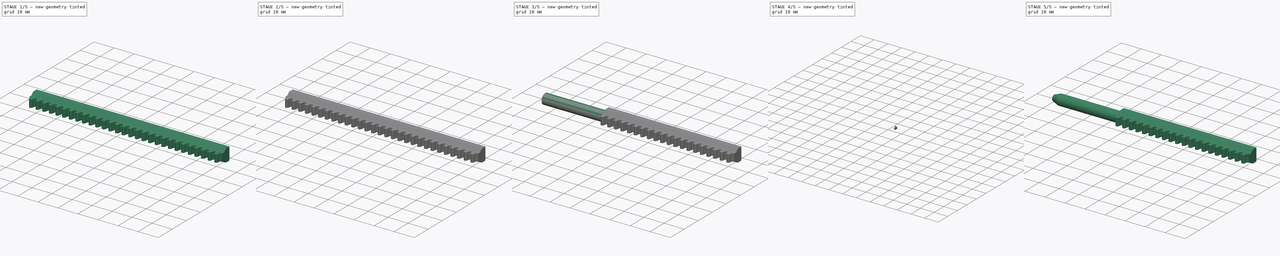
[diagram: build sequence overview — one tinted view per stage of 5, left to right]
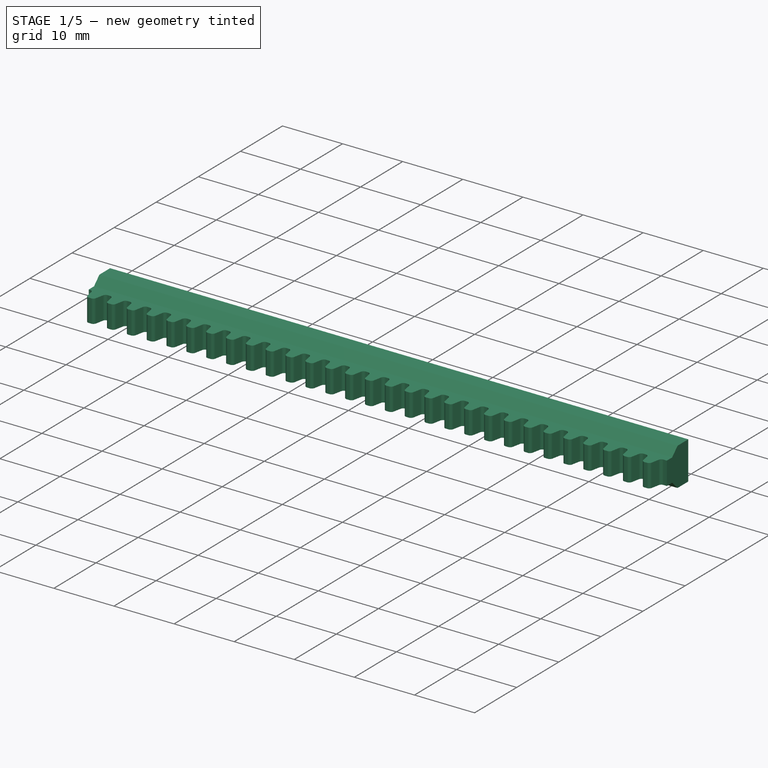
[diagram: stage 1 of 5 — iso view after this stage's code; geometry added in this stage tinted green]
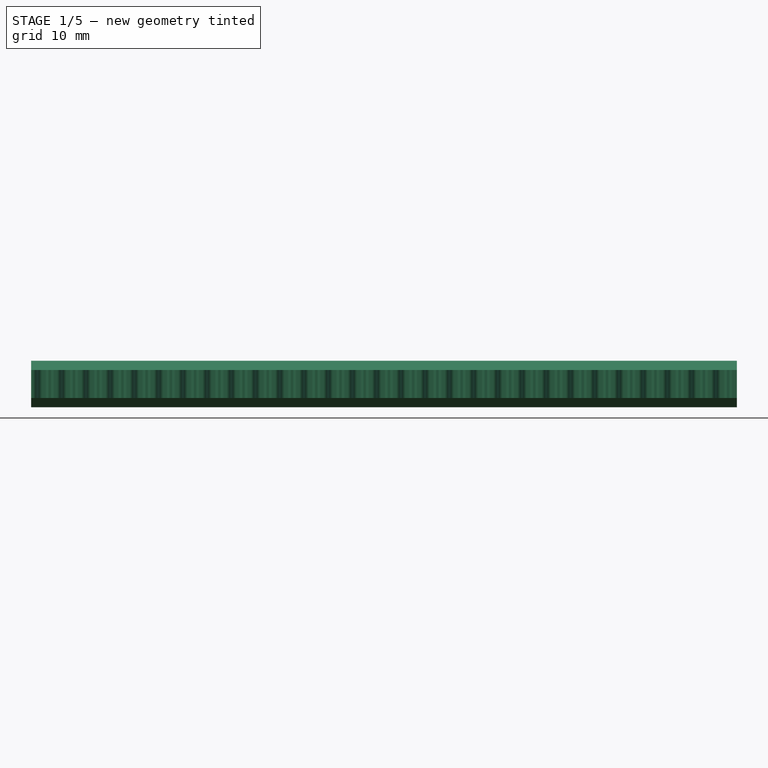
[diagram: stage 1 of 5 — front view after this stage's code; geometry added in this stage tinted green]
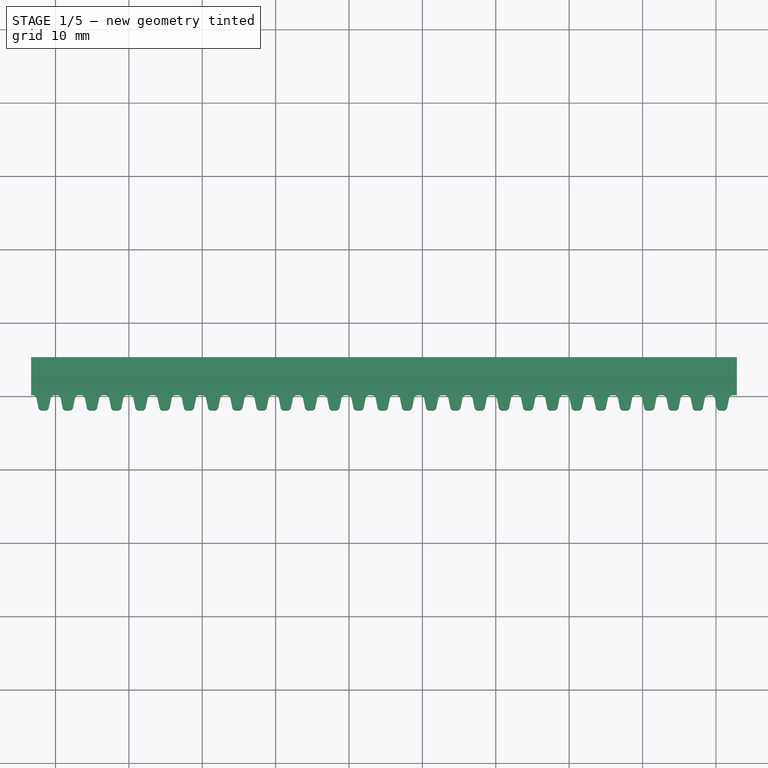
[diagram: stage 1 of 5 — top view after this stage's code; geometry added in this stage tinted green]
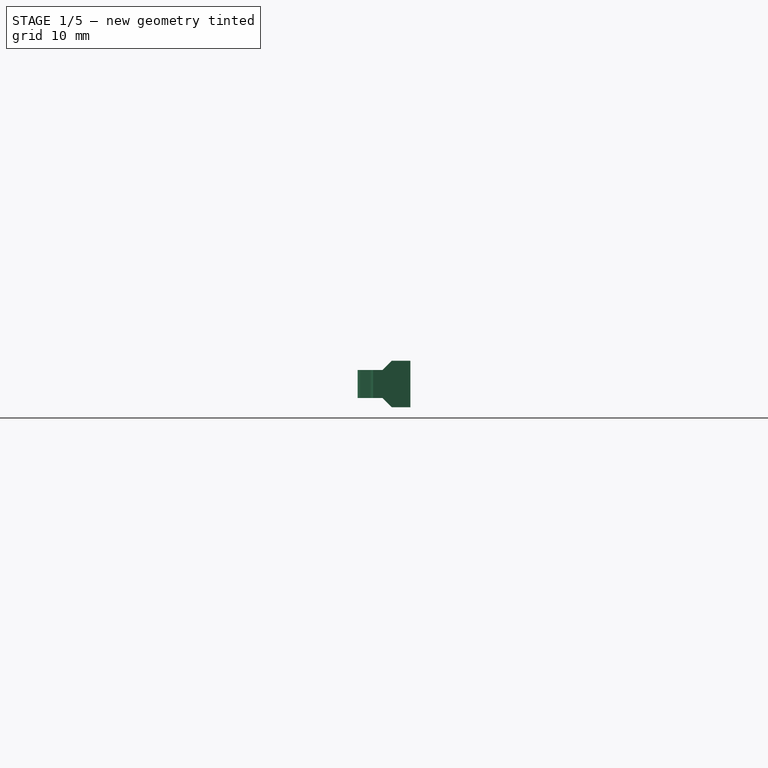
[diagram: stage 1 of 5 — right view after this stage's code; geometry added in this stage tinted green]
FCSTD DOCUMENT  (FreeCAD 0.19R24267 +99 (Git))
Label: Hopper Rod1
License: All rights reserved
LicenseURL: http://en.wikipedia.org/wiki/All_rights_reserved
objects: PartDesign::FeatureBase×6, PartDesign::Body×6, Sketcher::SketchObject×5, Part::FeaturePython×4, Part::Extrusion×4, PartDesign::Plane×3, Part::Face×2, App::DocumentObjectGroup×2, Part::MultiFuse×2, Part::Feature×1, Part::Cut×1
note: 34 computed .brp shape members not serialized (recipe doc carries the construction recipe); baked Part::Feature solids carry a one-line shape summary decoded from their .brp

FEATURE [Part::Feature] Part__Feature  label="Rack, Servo to Linear_100mm_MINI"
  shape: bbox 100 x 16.34 x 10.16 mm, 251 faces (baked)
FEATURE [PartDesign::FeatureBase] BaseFeature
  BaseFeature = -> Part__Feature
FEATURE [PartDesign::Plane] DatumPlane
  Length = 60
  MapMode = 5
  Placement = pos=(-73.33,0,0) rot=(0.57735,0.57735,0.57735;2.0944rad)
  ResizeMode = 0
  Support = -> [BaseFeature]
  Width = 60
FEATURE [Sketcher::SketchObject] Sketch
  FullyConstrained = false
  MapMode = 5
  Placement = pos=(-73.33,0,0) rot=(0.57735,0.57735,0.57735;2.0944rad)
  Support = -> [DatumPlane]
  sketch-geometry (4):
    g0: LineSegment StartX=1.72061 StartY=12.8665 StartZ=0 EndX=25.4474 EndY=12.8665 EndZ=0
    g1: LineSegment StartX=25.4474 StartY=12.8665 StartZ=0 EndX=25.4474 EndY=-12.5835 EndZ=0
    g2: LineSegment StartX=25.4474 StartY=-12.5835 StartZ=0 EndX=1.72061 EndY=-12.5835 EndZ=0
    g3: LineSegment StartX=1.72061 StartY=-12.5835 StartZ=0 EndX=1.72061 EndY=12.8665 EndZ=0
  constraints (8):
    c: Coincident(g0,g1)
    c: Coincident(g1,g2)
    c: Coincident(g2,g3)
    c: Coincident(g3,g0)
    c: Horizontal(g0)
    c: Horizontal(g2)
    c: Vertical(g1)
    c: Vertical(g3)
FEATURE [PartDesign::Body] Body
  BaseFeature = -> Part__Feature
  Group = -> [BaseFeature,DatumPlane,Sketch]
  Origin = -> Origin
  Tip = -> BaseFeature
FEATURE [Part::Face] Face
  FaceMakerClass = Part::FaceMakerBullseye
  Sources = -> [Sketch]
FEATURE [Part::FeaturePython] Slice  # WARN: FeaturePython — macro-defined, semantics opaque (R4)
  Base = -> Body
  Mode = 1
  Tolerance = 0
  Tools = -> [Face]
FEATURE [Part::FeaturePython] Slice_child0  label="Slice.0"  # WARN: FeaturePython — macro-defined, semantics opaque (R4)
  Base = -> Slice
  FilterType = 1
  Invert = false
  OverrideMaxVal = 0
  WindowFrom = 80
  WindowTo = 100
  items = 0
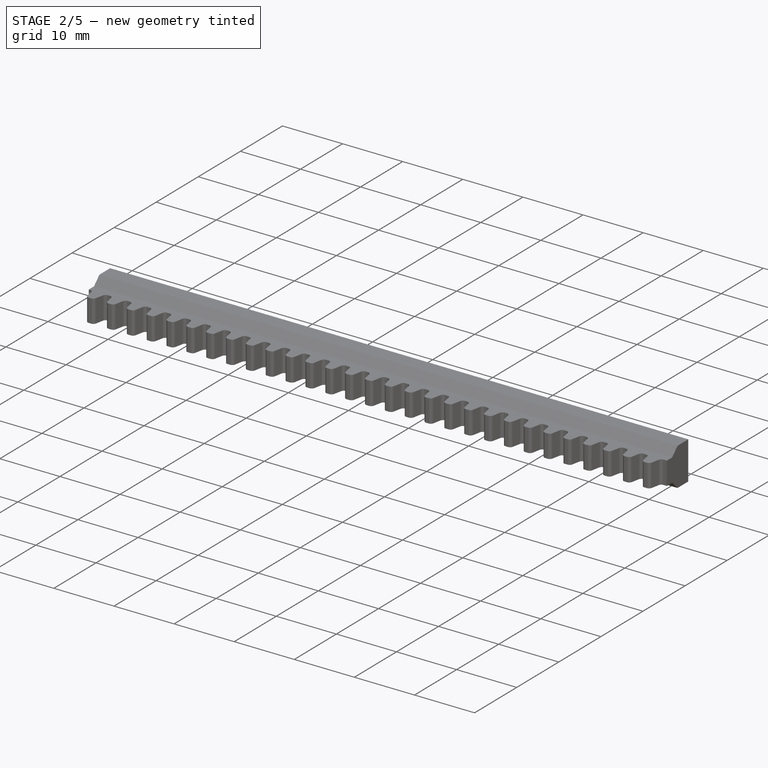
[diagram: stage 2 of 5 — iso view after this stage's code; geometry added in this stage tinted green]
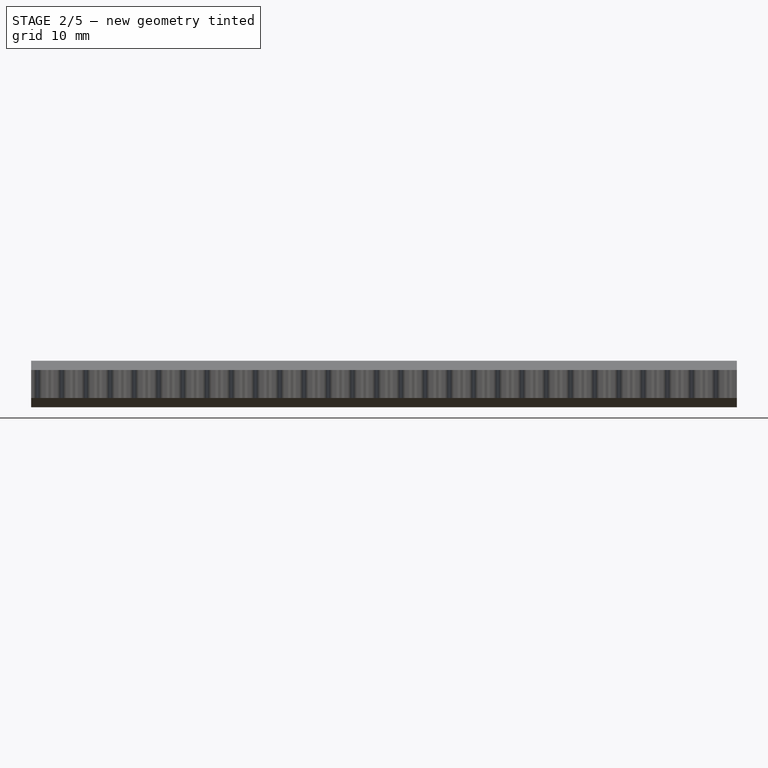
[diagram: stage 2 of 5 — front view after this stage's code; geometry added in this stage tinted green]
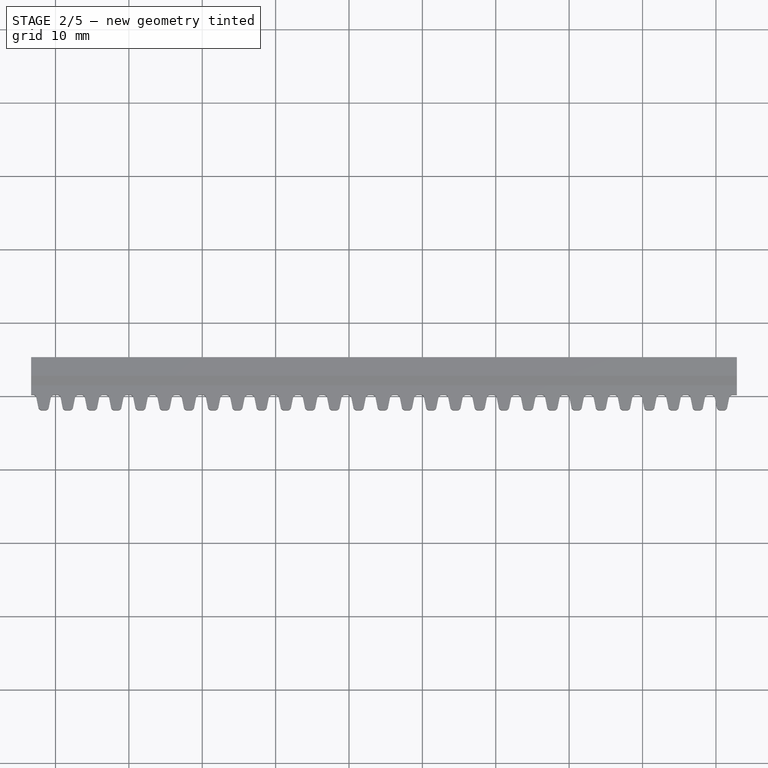
[diagram: stage 2 of 5 — top view after this stage's code; geometry added in this stage tinted green]
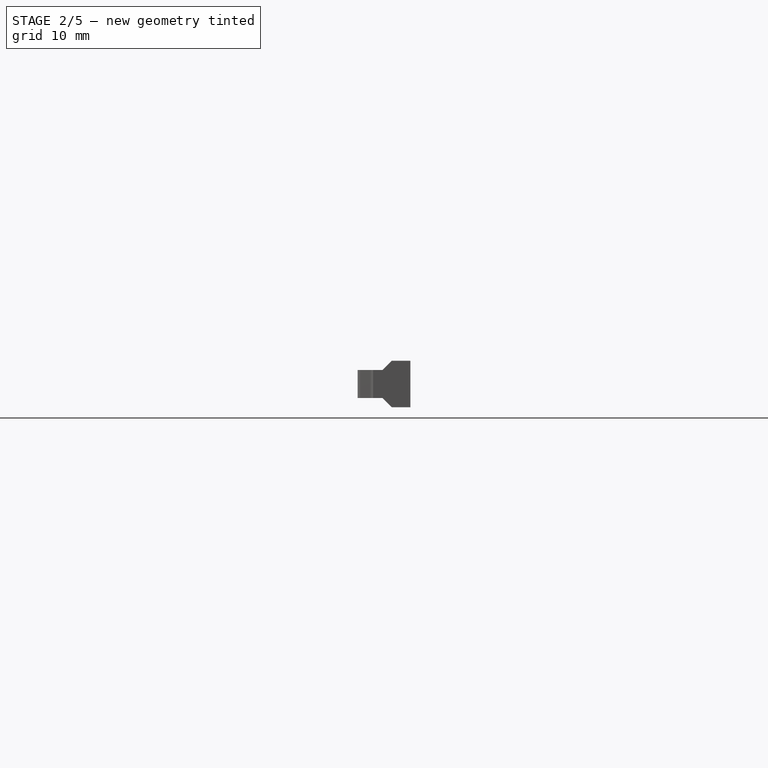
[diagram: stage 2 of 5 — right view after this stage's code; geometry added in this stage tinted green]
FEATURE [App::DocumentObjectGroup] GrExplode_Slice  label="Exploded Slice"
  Group = -> [Slice_child0]
FEATURE [PartDesign::FeatureBase] BaseFeature001
  BaseFeature = -> Slice_child0
FEATURE [PartDesign::Plane] DatumPlane001
  Length = 60
  MapMode = 5
  Placement = pos=(-73.33,0,0) rot=(0.57735,-0.57735,-0.57735;2.0944rad)
  ResizeMode = 0
  Support = -> [BaseFeature001]
  Width = 60
FEATURE [Sketcher::SketchObject] Sketch001
  FullyConstrained = false
  MapMode = 5
  Placement = pos=(-73.33,0,0) rot=(0.57735,-0.57735,-0.57735;2.0944rad)
  Support = -> [DatumPlane001]
  sketch-geometry (1):
    g0: Circle CenterX=-12.7043 CenterY=1.86845 CenterZ=0 NormalX=0 NormalY=0 NormalZ=1 AngleXU=0 Radius=2.55638
FEATURE [PartDesign::Body] Body001
  BaseFeature = -> Slice_child0
  Group = -> [BaseFeature001,DatumPlane001,Sketch001]
  Origin = -> Origin001
  Tip = -> BaseFeature001
FEATURE [Part::Extrusion] Extrude
  Base = -> Sketch001
  Dir = (-1,0,0)
  DirMode = 2
  FaceMakerClass = Part::FaceMakerBullseye
  LengthFwd = 30
  LengthRev = 0
  Reversed = true
  Solid = true
  Symmetric = false
FEATURE [PartDesign::FeatureBase] BaseFeature002
  BaseFeature = -> Extrude
FEATURE [PartDesign::Plane] DatumPlane002
  Length = 60
  MapMode = 11
  Placement = pos=(-43.33,12.7043,1.86845) rot=(0,-1,0;1.5708rad)
  ResizeMode = 0
  Support = -> [BaseFeature002]
  Width = 60
FEATURE [Sketcher::SketchObject] Sketch002
  FullyConstrained = false
  MapMode = 5
  Placement = pos=(-43.33,12.7043,1.86845) rot=(0,-1,0;1.5708rad)
  Support = -> [DatumPlane002]
  sketch-geometry (4):
    g0: LineSegment StartX=-7.71854 StartY=6.16234 StartZ=0 EndX=7.70364 EndY=6.16234 EndZ=0
    g1: LineSegment StartX=7.70364 StartY=6.16234 StartZ=0 EndX=7.70364 EndY=-5.4043 EndZ=0
    g2: LineSegment StartX=7.70364 StartY=-5.4043 StartZ=0 EndX=-7.71854 EndY=-5.4043 EndZ=0
    g3: LineSegment StartX=-7.71854 StartY=-5.4043 StartZ=0 EndX=-7.71854 EndY=6.16234 EndZ=0
  constraints (8):
    c: Coincident(g0,g1)
    c: Coincident(g1,g2)
    c: Coincident(g2,g3)
    c: Coincident(g3,g0)
    c: Horizontal(g0)
    c: Horizontal(g2)
    c: Vertical(g1)
    c: Vertical(g3)
FEATURE [PartDesign::Body] Body002
  BaseFeature = -> Extrude
  Group = -> [BaseFeature002,DatumPlane002,Sketch002]
  Origin = -> Origin002
  Tip = -> BaseFeature002
FEATURE [Part::Face] Face001
  FaceMakerClass = Part::FaceMakerBullseye
  Sources = -> [Sketch002]
FEATURE [Part::FeaturePython] Slice001  # WARN: FeaturePython — macro-defined, semantics opaque (R4)
  Base = -> Body001
  Mode = 1
  Tolerance = 0
  Tools = -> [Face001]
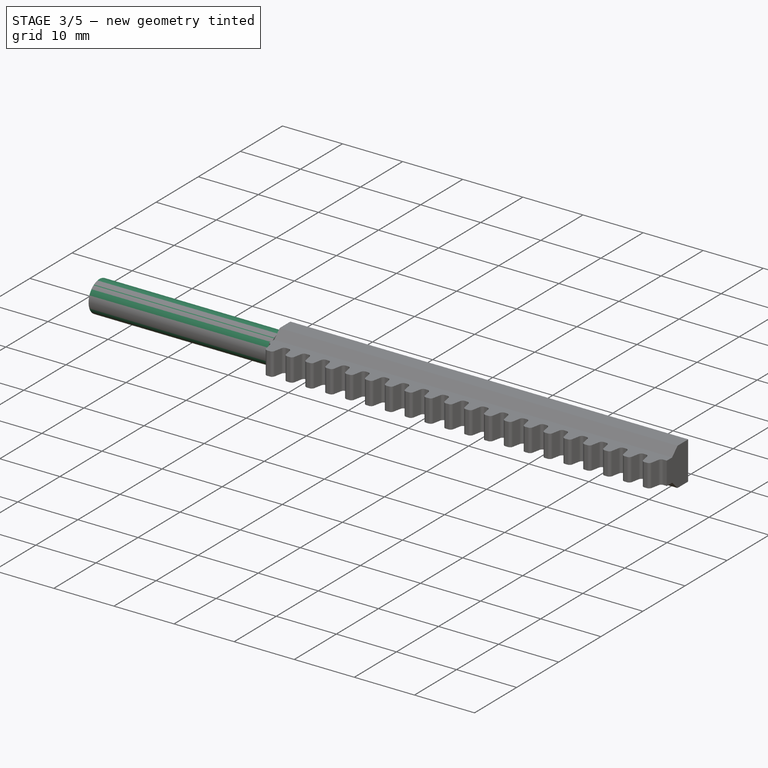
[diagram: stage 3 of 5 — iso view after this stage's code; geometry added in this stage tinted green]
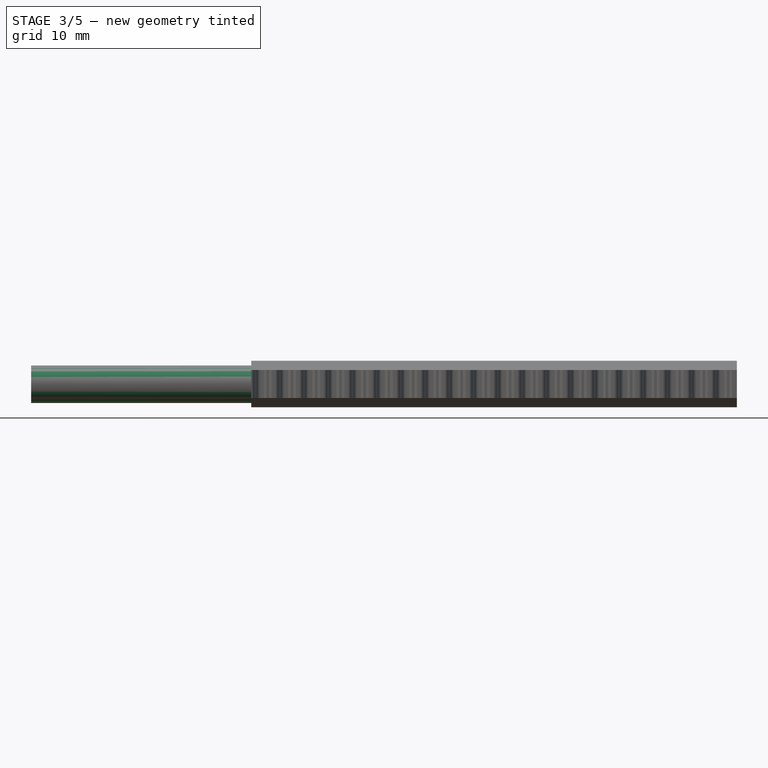
[diagram: stage 3 of 5 — front view after this stage's code; geometry added in this stage tinted green]
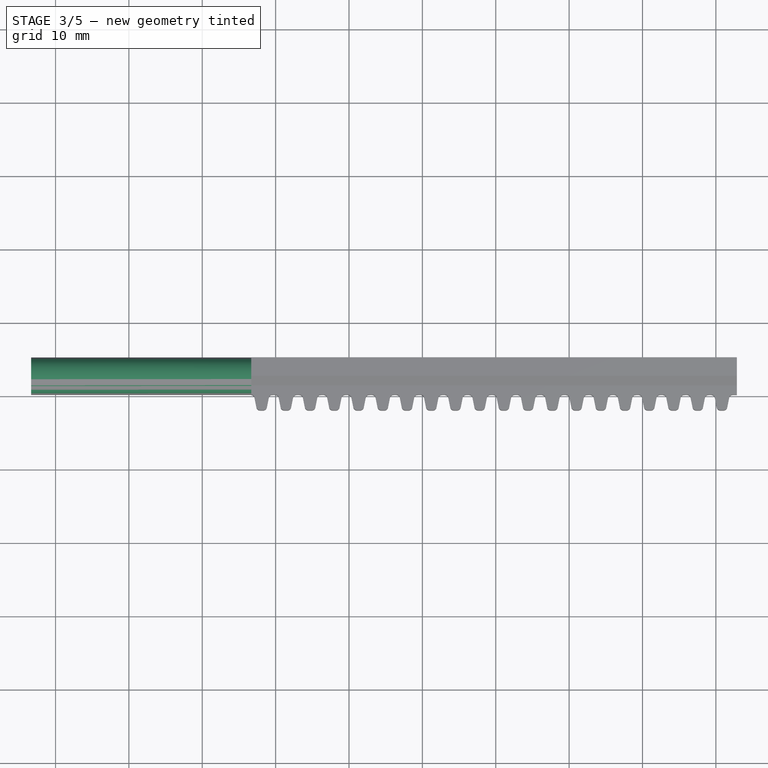
[diagram: stage 3 of 5 — top view after this stage's code; geometry added in this stage tinted green]
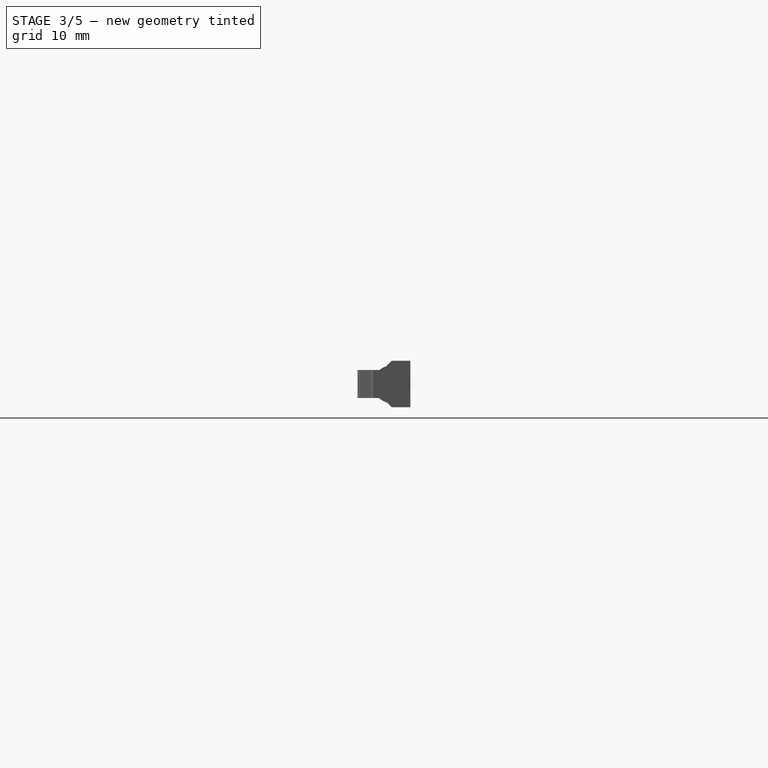
[diagram: stage 3 of 5 — right view after this stage's code; geometry added in this stage tinted green]
FEATURE [Part::FeaturePython] Slice001_child1  label="Slice001.1"  # WARN: FeaturePython — macro-defined, semantics opaque (R4)
  Base = -> Slice001
  FilterType = 1
  Invert = false
  OverrideMaxVal = 0
  WindowFrom = 80
  WindowTo = 100
  items = 1
FEATURE [Part::MultiFuse] Fusion
  Shapes = -> [Slice001_child1,Body002]
FEATURE [App::DocumentObjectGroup] GrExplode_Slice001  label="Exploded Slice001"
  Group = -> [Fusion]
FEATURE [PartDesign::FeatureBase] BaseFeature003
  BaseFeature = -> Fusion
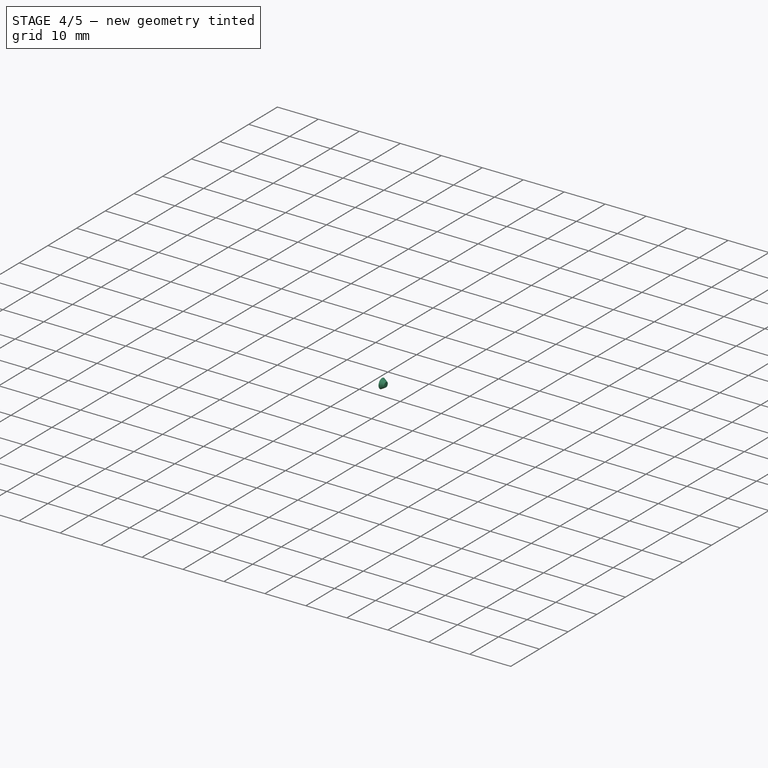
[diagram: stage 4 of 5 — iso view after this stage's code; geometry added in this stage tinted green]
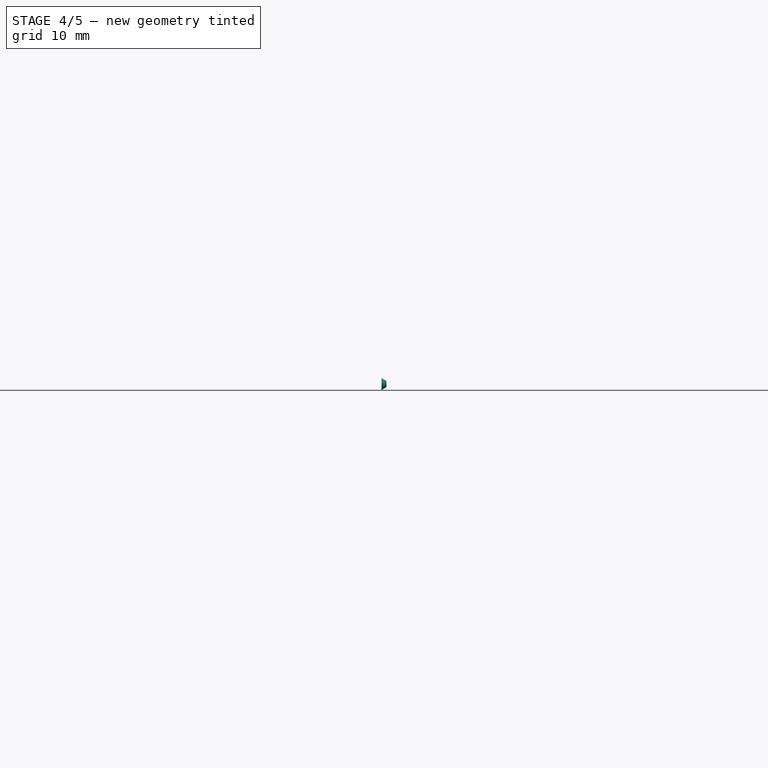
[diagram: stage 4 of 5 — front view after this stage's code; geometry added in this stage tinted green]
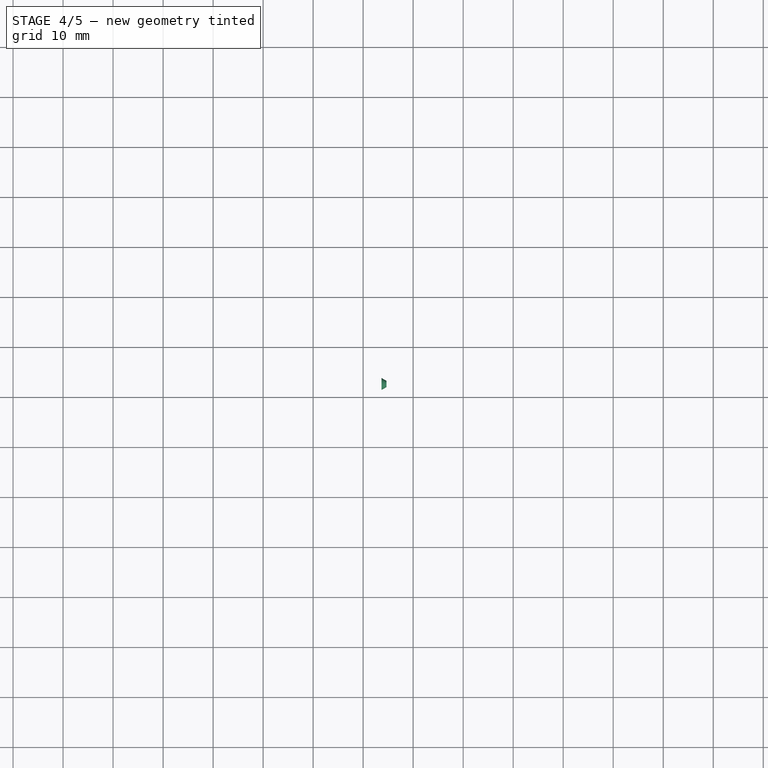
[diagram: stage 4 of 5 — top view after this stage's code; geometry added in this stage tinted green]
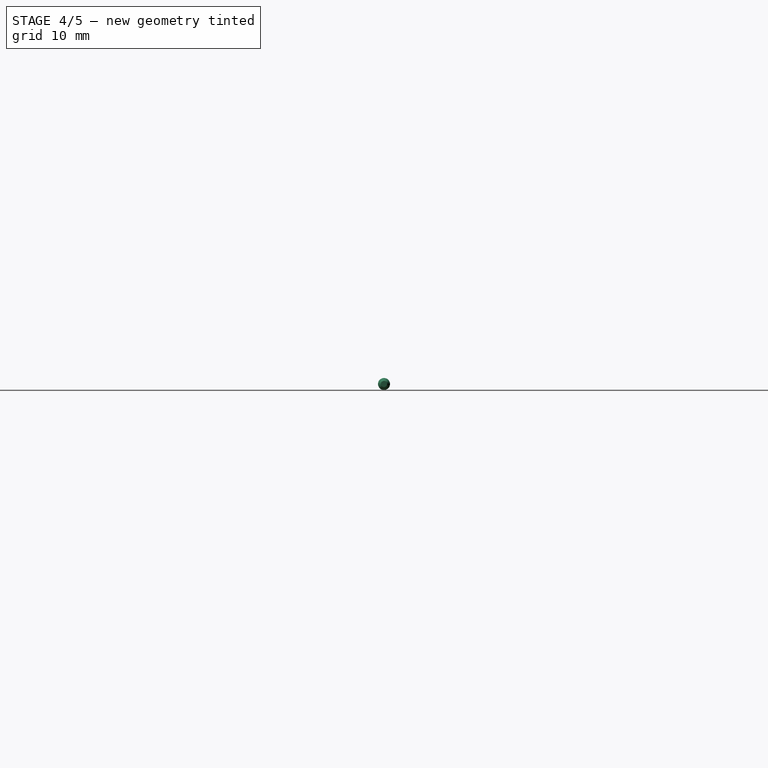
[diagram: stage 4 of 5 — right view after this stage's code; geometry added in this stage tinted green]
FEATURE [Sketcher::SketchObject] Sketch003
  FullyConstrained = false
  MapMode = 5
  Placement = pos=(-73.33,0,0) rot=(0.57735,-0.57735,-0.57735;2.0944rad)
  Support = -> [BaseFeature003]
  sketch-geometry (1):
    g0: Circle CenterX=-12.694 CenterY=1.89163 CenterZ=0 NormalX=0 NormalY=0 NormalZ=1 AngleXU=0 Radius=2.52587
FEATURE [PartDesign::Body] Body003
  BaseFeature = -> Fusion
  Group = -> [BaseFeature003,Sketch003]
  Origin = -> Origin003
  Tip = -> BaseFeature003
FEATURE [Part::Extrusion] Extrude003
  Base = -> Sketch003
  Dir = (-1,0,0)
  DirMode = 2
  FaceMakerClass = Part::FaceMakerBullseye
  LengthFwd = 3
  LengthRev = 0
  Solid = true
  Symmetric = false
  TaperAngle = -20
FEATURE [Part::MultiFuse] Fusion001
  Shapes = -> [Body003,Extrude003]
FEATURE [PartDesign::FeatureBase] BaseFeature004
  BaseFeature = -> Fusion001
FEATURE [Part::Extrusion] Extrude005
  Base = -> Sketch004
  Dir = (-1,0,0)
  DirMode = 2
  FaceMakerClass = Part::FaceMakerBullseye
  LengthFwd = 1
  LengthRev = 0
  Reversed = true
  Solid = true
  Symmetric = false
  TaperAngle = -30
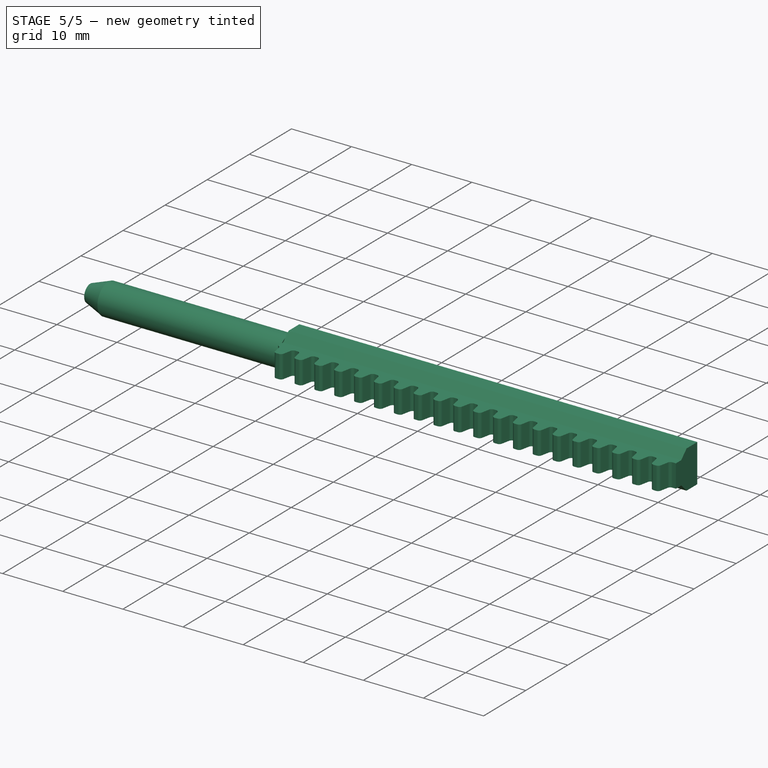
[diagram: stage 5 of 5 — iso view after this stage's code; geometry added in this stage tinted green]
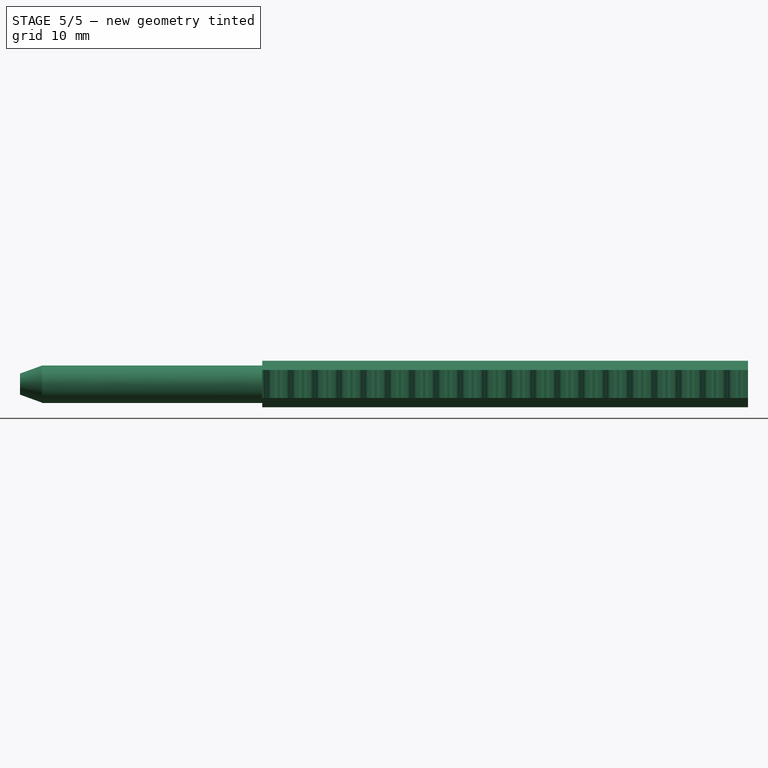
[diagram: stage 5 of 5 — front view after this stage's code; geometry added in this stage tinted green]
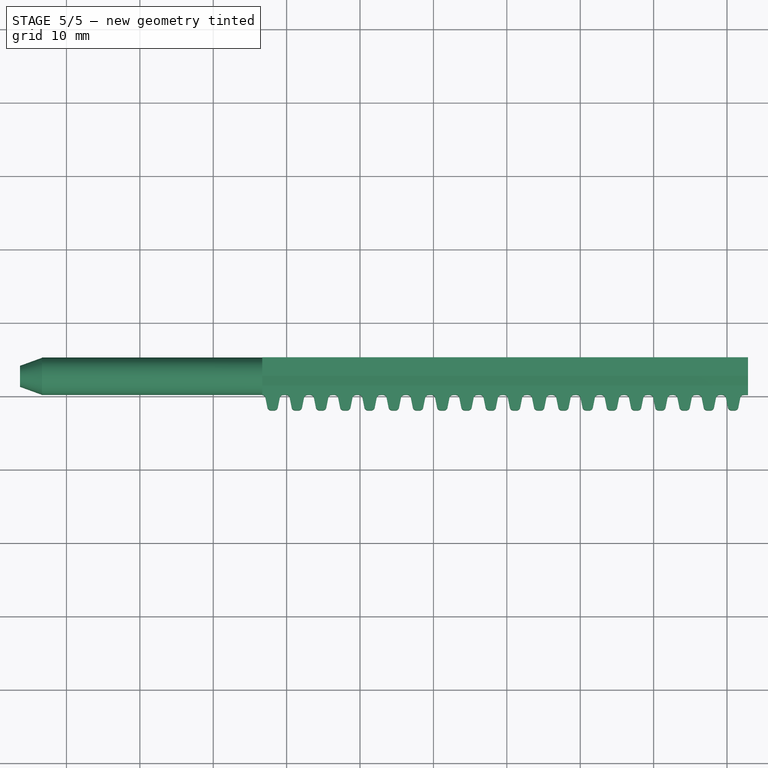
[diagram: stage 5 of 5 — top view after this stage's code; geometry added in this stage tinted green]
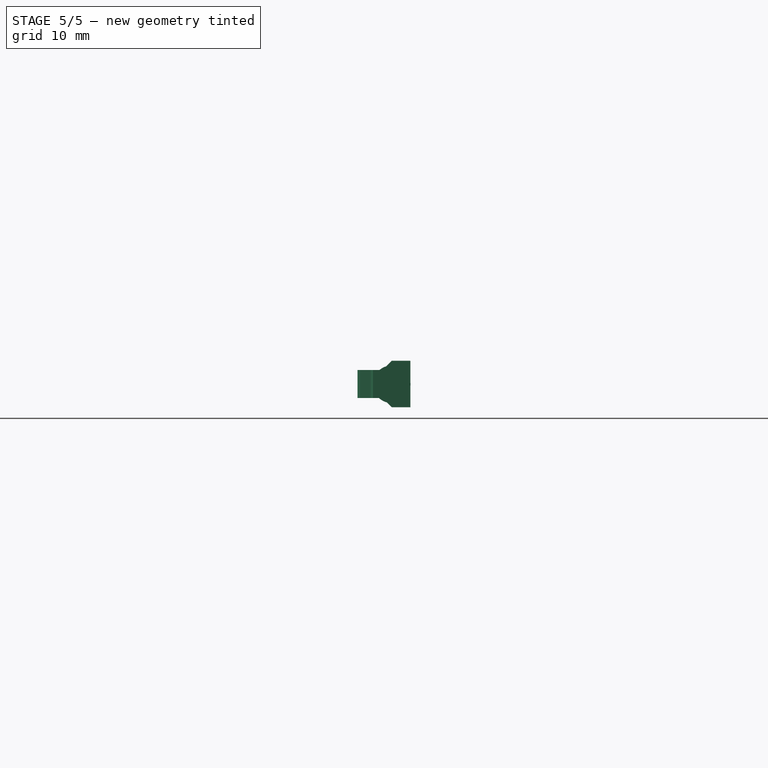
[diagram: stage 5 of 5 — right view after this stage's code; geometry added in this stage tinted green]
FEATURE [Sketcher::SketchObject] Sketch004
  FullyConstrained = false
  MapMode = 5
  Placement = pos=(-76.33,0,0) rot=(0.57735,-0.57735,-0.57735;2.0944rad)
  Support = -> [BaseFeature004]
  sketch-geometry (1):
    g0: Circle CenterX=-12.6861 CenterY=1.91051 CenterZ=0 NormalX=0 NormalY=0 NormalZ=1 AngleXU=0 Radius=1.19865
FEATURE [PartDesign::Body] Body004
  BaseFeature = -> Fusion001
  Group = -> [BaseFeature004,Sketch004]
  Origin = -> Origin004
  Tip = -> BaseFeature004
FEATURE [Part::Extrusion] Extrude004
  Base = -> Sketch004
  Dir = (-1,0,0)
  DirMode = 2
  FaceMakerClass = Part::FaceMakerBullseye
  LengthFwd = 1
  LengthRev = 0
  Reversed = true
  Solid = true
  Symmetric = false
  TaperAngle = -30
FEATURE [Part::Cut] Cut
  Base = -> Body004
  Tool = -> Extrude005
FEATURE [PartDesign::FeatureBase] BaseFeature005
  BaseFeature = -> Cut
FEATURE [PartDesign::Body] Body005
  BaseFeature = -> Cut
  Group = -> [BaseFeature005]
  Origin = -> Origin005
  Tip = -> BaseFeature005
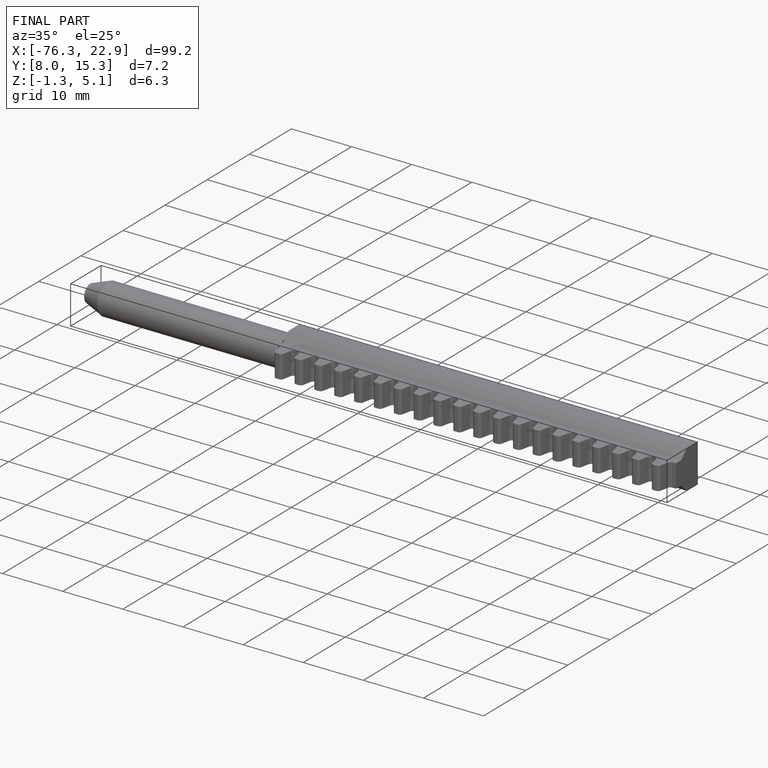
[diagram: finished part — iso view with bounding-box wireframe]
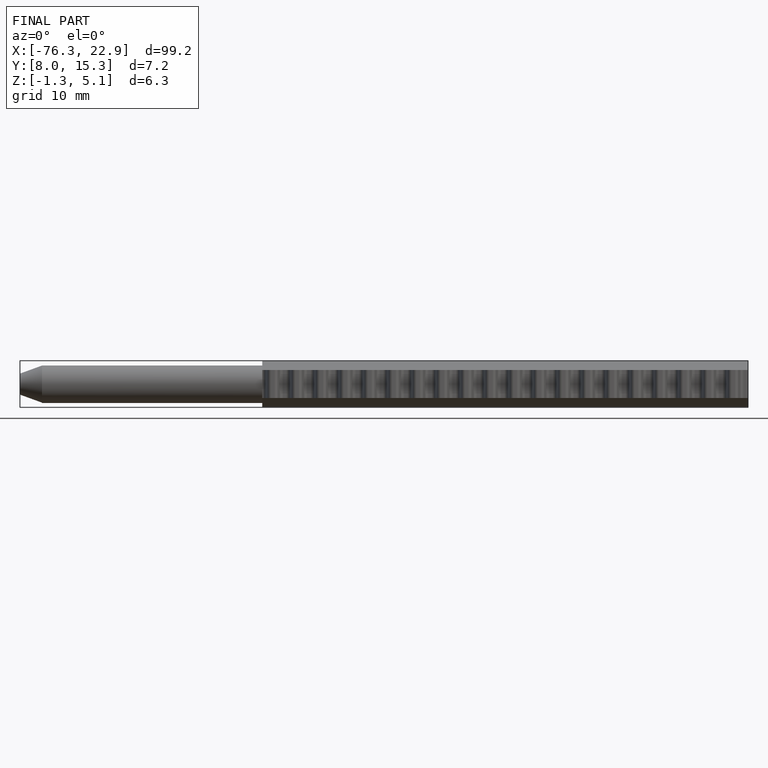
[diagram: finished part — front view with bounding-box wireframe]
